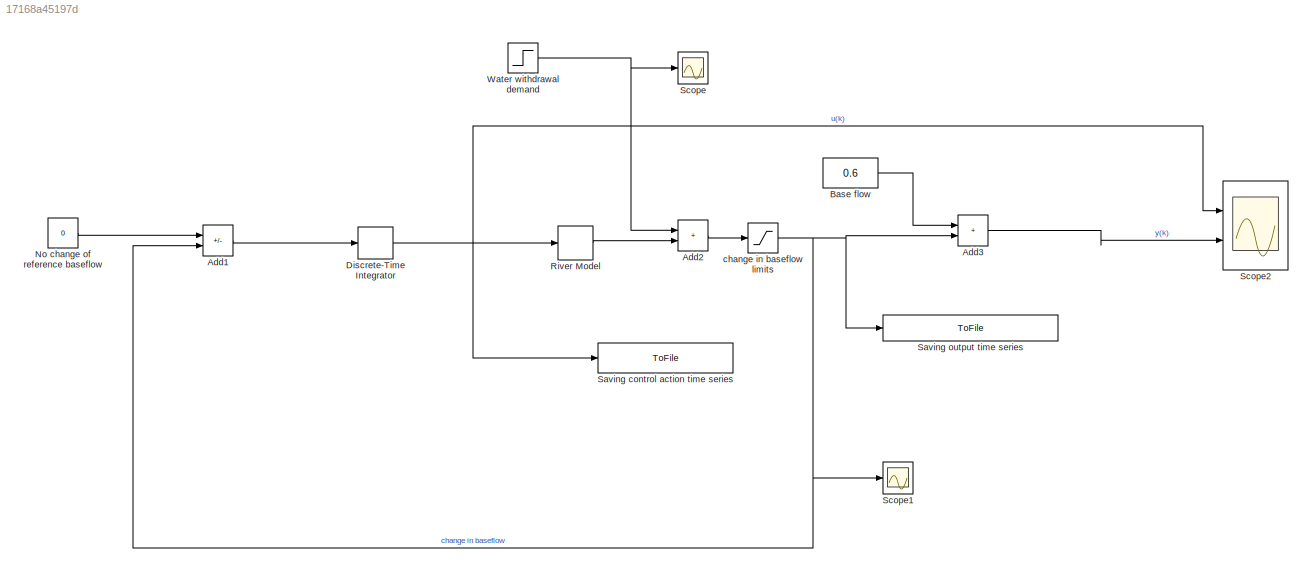
MODEL slx_17168a45197d
KIND model
CONFIG AbsTol = auto
CONFIG EnableMultiTasking = on
CONFIG FixedStep = auto
CONFIG MaxStep = auto
CONFIG MinStep = auto
CONFIG RelTol = 1e-3
CONFIG SampleTimeConstraint = Unconstrained
CONFIG SolverName = ode45
CONFIG StartTime = 0.0
CONFIG StopTime = 130*Ts
BLOCK [Step]  Water withdrawal demand 
  After = -0.4    % Replace 0 with the correct value here
  Before = 0   % Replace 0 with the correct value here
  SampleTime = 5   % hours
  Time = 105    % Replace 0 with the correct value here
BLOCK [Sum] Add1
  IconShape = rectangular
  Inputs = +-
  Ports = [2, 1]
  SampleTime = 5
BLOCK [Sum] Add2
  IconShape = rectangular
  Ports = [2, 1]
  SampleTime = 5
BLOCK [Sum] Add3
  IconShape = rectangular
  Ports = [2, 1]
  SampleTime = 5
BLOCK [Constant] Base flow
  SampleTime = -1
  Value = 0.6
BLOCK [DiscreteIntegrator] Discrete-Time Integrator
  ICPrevOutput = DiscIntNeverNeededParam
  ICPrevScaledInput = DiscIntNeverNeededParam
  Ports = [1, 1]
  SampleTime = 5     % hours
  gainval = 0.01       % Replace 1 with the correct value here
BLOCK [Constant] No change of reference baseflow
  Value = 0
BLOCK [Delay] River Model
  DelayLength = 5   % Replace 1 with the correct value here
  InputPortMap = u0
  Ports = [1, 1]
  SampleTime = 5    % hours
BLOCK [ToFile] Saving control action time series
  Filename = reachCG_U
  MatrixName = rU
  Ports = [1]
  SampleTime = 5
BLOCK [ToFile] Saving output time series
  Filename = reachCG_Y
  MatrixName = rY
  Ports = [1]
  SampleTime = 5
BLOCK [Scope] Scope
  Floating = off
  NumInputPorts = 1
  Ports = [1]
  ScopeSpecificationString = Simulink.scopes.TimeScopeBlockCfg('CurrentConfiguration', extmgr.ConfigurationSet(extmgr.Configuration('Core','General UI',true),extmgr.Configuration('Core','Source UI',true),extmgr.Configuration('Sources','WiredSimulink',true,'DataLoggingVariableName','ScopeData1'),extmgr.Configuration('Visuals','Time Domain',true,'SerializedDisplays',{struct('MinYLimReal','-0.45','MaxYLimReal','0.05','YLabelReal...<+1366ch>
BLOCK [Scope] Scope1
  Floating = off
  NumInputPorts = 1
  Ports = [1]
  ScopeSpecificationString = Simulink.scopes.TimeScopeBlockCfg('CurrentConfiguration', extmgr.ConfigurationSet(extmgr.Configuration('Core','General UI',true),extmgr.Configuration('Core','Source UI',true),extmgr.Configuration('Sources','WiredSimulink',true,'DataLoggingSaveFormat','StructureWithTime','DataLoggingLimitDataPoints',true,'DataLoggingDecimation','1','DataLoggingDecimateData',true),extmgr.Configuration('Visuals','Tim...<+1729ch>
BLOCK [Scope] Scope2
  Floating = off
  NumInputPorts = 2
  Ports = [2]
  ScopeSpecificationString = Simulink.scopes.TimeScopeBlockCfg('CurrentConfiguration', extmgr.ConfigurationSet(extmgr.Configuration('Core','General UI',true,'FigureColor',[1 1 1]),extmgr.Configuration('Core','Source UI',true),extmgr.Configuration('Sources','WiredSimulink',true,'DataLoggingVariableName','ScopeData1'),extmgr.Configuration('Visuals','Time Domain',true,'SerializedDisplays',{struct('MinYLimReal','-0.04999','MaxYLi...<+2260ch>
BLOCK [Saturate] change in baseflow limits
  LowerLimit = -0.3
  SampleTime = 5    % hours
  UpperLimit = 0.3
NET  Water withdrawal demand :1 -> Add2:1, Scope:1
LINE Add1:1 -> Discrete-Time Integrator:1
LINE Add2:1 -> change in baseflow limits:1
LINE Add3:1 -> Scope2:2
LINE Base flow:1 -> Add3:1
NET Discrete-Time Integrator:1 -> River Model:1, Saving control action time series:1, Scope2:1
LINE No change of reference baseflow:1 -> Add1:1
LINE River Model:1 -> Add2:2
NET change in baseflow limits:1 -> Add1:2, Add3:2, Saving output time series:1, Scope1:1
note: NET lines group one-source signal fan-out (src -> all destinations, sorted); 1:1 wires keep LINE
